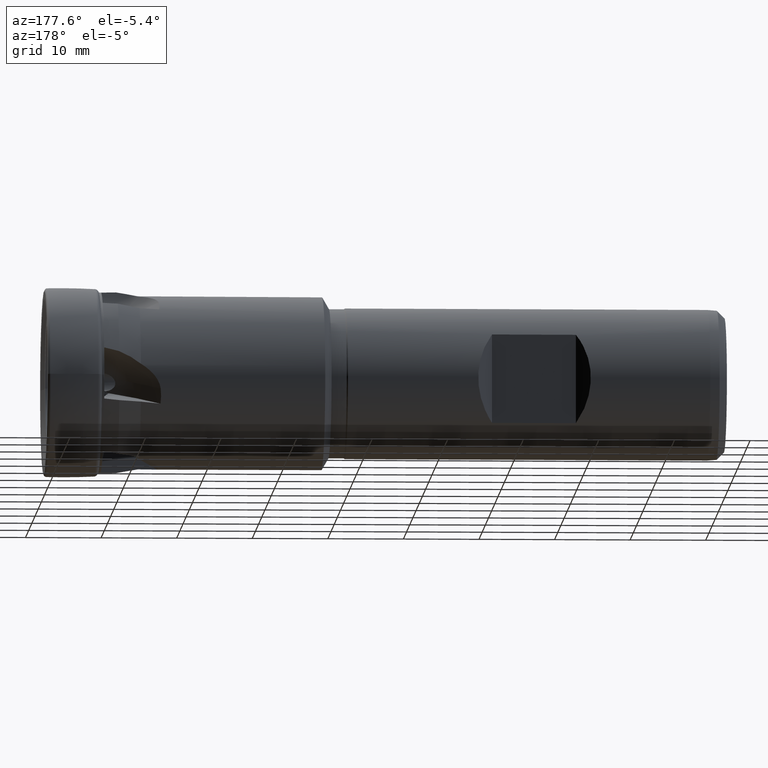
[diagram: clean part render]
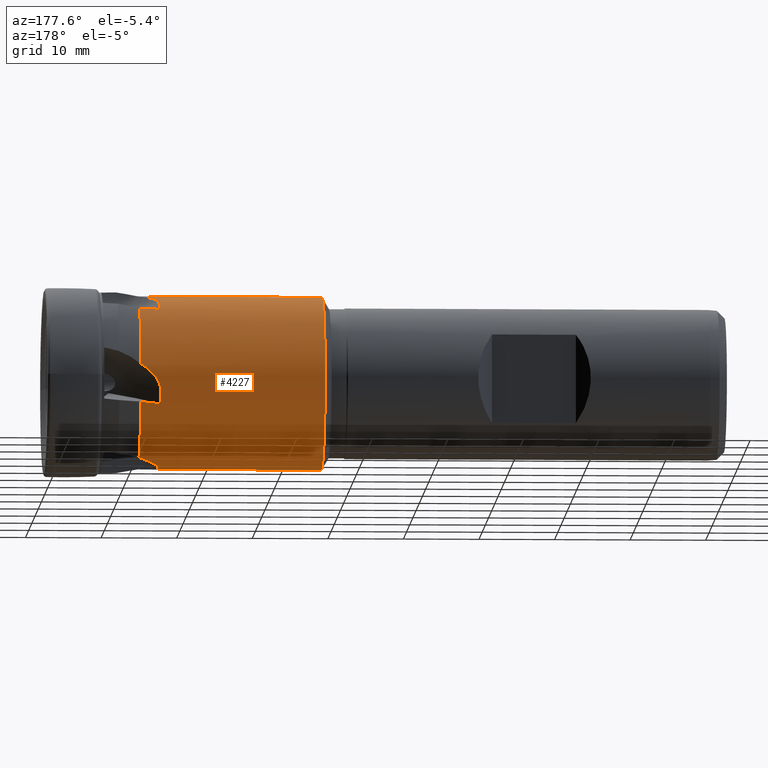
[diagram: same view with one face highlighted and labeled with its STEP entity id]
A machine part, auxiliary view. The second image highlights one B-rep face of the part: STEP entity #4227.
In plain terms, the highlighted cylindrical surface (partial cylindrical patch) has radius 11.47 mm, axis along (1, -0, -0).
Its self-contained STEP definition (entity closure, byte-faithful):
#42 = B_SPLINE_CURVE_WITH_KNOTS ( 'NONE', 3,
 ( #3622, #3608, #3624, #3625 ),
 .UNSPECIFIED., .F., .F.,
 ( 4, 4 ),
 ( 0.0002233341233042811500, 0.002014763653089135900 ),
 .UNSPECIFIED. ) ;
#57 = B_SPLINE_CURVE_WITH_KNOTS ( 'NONE', 3,
 ( #3612, #3607, #3606, #3613, #3614, #3615, #3616, #3617, #3618, #3619, #3620, #3621 ),
 .UNSPECIFIED., .F., .F.,
 ( 4, 2, 2, 2, 2, 4 ),
 ( 0.0009260420492900439100, 0.001466949794871057800, 0.002007857540452071600, 0.003089673031614100000, 0.004171488522776128000, 0.005253304013938156500 ),
 .UNSPECIFIED. ) ;
#110 = B_SPLINE_CURVE_WITH_KNOTS ( 'NONE', 3,
 ( #3265, #3250, #3266, #3267 ),
 .UNSPECIFIED., .F., .F.,
 ( 4, 4 ),
 ( 1.504141304261615500E-016, 0.002014763653088705700 ),
 .UNSPECIFIED. ) ;
#113 = B_SPLINE_CURVE_WITH_KNOTS ( 'NONE', 3,
 ( #3254, #3249, #3248, #3255, #3256, #3257, #3258, #3259, #3260, #3261, #3262, #3263 ),
 .UNSPECIFIED., .F., .F.,
 ( 4, 2, 2, 2, 2, 4 ),
 ( 0.004748511316785335300, 0.005289118529937748800, 0.005829725743090161500, 0.006910940169394991100, 0.007992154595699818900, 0.009073369022004647600 ),
 .UNSPECIFIED. ) ;
#114 = B_SPLINE_CURVE_WITH_KNOTS ( 'NONE', 3,
 ( #3354, #3349, #3348, #3355, #3356, #3357, #3358, #3359, #3360, #3361, #3362, #3363 ),
 .UNSPECIFIED., .F., .F.,
 ( 4, 2, 2, 2, 2, 4 ),
 ( 0.004748511316785443800, 0.005289118529937852100, 0.005829725743090260300, 0.006910940169395078700, 0.007992154595699897000, 0.009073369022004715300 ),
 .UNSPECIFIED. ) ;
#115 = B_SPLINE_CURVE_WITH_KNOTS ( 'NONE', 3,
 ( #3364, #3350, #3365, #3366 ),
 .UNSPECIFIED., .F., .F.,
 ( 4, 4 ),
 ( 4.072725187628632600E-016, 0.002014763653089292400 ),
 .UNSPECIFIED. ) ;
#439 = CARTESIAN_POINT ( 'NONE',  ( -11.87817552345608800, 10.92355657672099800, -3.498115451950587500 ) ) ;
#444 = CARTESIAN_POINT ( 'NONE',  ( -12.74259548863415100, 10.89584765442856300, -3.584642035906715000 ) ) ;
#445 = CARTESIAN_POINT ( 'NONE',  ( -13.60699801059268700, 10.86711265769592300, -3.670833300362579700 ) ) ;
#446 = CARTESIAN_POINT ( 'NONE',  ( -14.47126106568777700, 10.83735564290759400, -3.756677078102218300 ) ) ;
#600 = EDGE_CURVE ( 'NONE', #5144, #5130, #4304, .T. ) ;
#602 = EDGE_CURVE ( 'NONE', #5130, #5157, #3240, .T. ) ;
#603 = EDGE_CURVE ( 'NONE', #5140, #5157, #4308, .T. ) ;
#604 = EDGE_CURVE ( 'NONE', #4691, #5140, #113, .T. ) ;
#605 = EDGE_CURVE ( 'NONE', #5112, #4691, #110, .T. ) ;
#606 = EDGE_CURVE ( 'NONE', #5103, #5112, #2257, .T. ) ;
#607 = EDGE_CURVE ( 'NONE', #5101, #5103, #4307, .T. ) ;
#608 = EDGE_CURVE ( 'NONE', #5109, #5101, #114, .T. ) ;
#609 = EDGE_CURVE ( 'NONE', #5156, #5109, #115, .T. ) ;
#808 = AXIS2_PLACEMENT_3D ( 'NONE', #1395, #1392, #1397 ) ;
#1392 = DIRECTION ( 'NONE',  ( 1.000000000000000000, -0.0000000000000000000, -0.0000000000000000000 ) ) ;
#1393 = CYLINDRICAL_SURFACE ( 'NONE', #808, 11.47000000000000100 ) ;
#1394 = FACE_OUTER_BOUND ( 'NONE', #5074, .T. ) ;
#1395 = CARTESIAN_POINT ( 'NONE',  ( 0.0000000000000000000, 0.0000000000000000000, 0.0000000000000000000 ) ) ;
#1397 = DIRECTION ( 'NONE',  ( 0.0000000000000000000, 0.0000000000000000000, -1.000000000000000000 ) ) ;
#1797 = CARTESIAN_POINT ( 'NONE',  ( -14.48066843762638500, 5.214631095827272100, 10.21609135307788700 ) ) ;
#1888 = CARTESIAN_POINT ( 'NONE',  ( -11.87817552345578800, 11.37413133048542100, 1.479877183035790200 ) ) ;
#1890 = CARTESIAN_POINT ( 'NONE',  ( -11.87817552345608800, 6.702470116553361600, 9.307942540470969900 ) ) ;
#1895 = CARTESIAN_POINT ( 'NONE',  ( -14.48066843762615500, 11.32748988041783600, -1.802463039573803300 ) ) ;
#1898 = CARTESIAN_POINT ( 'NONE',  ( -14.47126106568777900, 6.921739282489413700, 9.146060644082927700 ) ) ;
#1906 = CARTESIAN_POINT ( 'NONE',  ( -14.48066843762578400, 1.786142657491685000, -11.33007477499954300 ) ) ;
#1909 = CARTESIAN_POINT ( 'NONE',  ( -14.49795270132863200, -6.130933970260212600E-015, -11.47000000000000100 ) ) ;
#1914 = CARTESIAN_POINT ( 'NONE',  ( -36.24714991585852200, 1.404669878622014200E-015, 11.47000000000000100 ) ) ;
#1924 = CARTESIAN_POINT ( 'NONE',  ( -11.87817552345579000, 2.107353039129789000, 11.27474891820081600 ) ) ;
#1928 = CARTESIAN_POINT ( 'NONE',  ( -36.24714991585852200, 0.0000000000000000000, -11.47000000000000100 ) ) ;
#1931 = CARTESIAN_POINT ( 'NONE',  ( -11.87817552345608800, 10.92355657672099800, -3.498115451950587500 ) ) ;
#1936 = CARTESIAN_POINT ( 'NONE',  ( -11.87817552345572900, 4.922246715615383300, -10.36013451990916900 ) ) ;
#1940 = CARTESIAN_POINT ( 'NONE',  ( -14.47126106568777700, 10.83735564290759400, -3.756677078102218300 ) ) ;
#1941 = CARTESIAN_POINT ( 'NONE',  ( -11.87817552345608800, 1.404669878622014200E-015, 11.47000000000000100 ) ) ;
#2257 =( BOUNDED_CURVE ( )  B_SPLINE_CURVE ( 3, ( #3264, #3268, #3269, #4187 ),
 .UNSPECIFIED., .F., .T. ) 
 B_SPLINE_CURVE_WITH_KNOTS ( ( 4, 4 ),
 ( 1.566554018874448000, 1.590316759759671900 ),
 .UNSPECIFIED. ) 
 CURVE ( )  GEOMETRIC_REPRESENTATION_ITEM ( )  RATIONAL_B_SPLINE_CURVE ( ( 1.000000000000000000, 0.9999529448990245300, 0.9999529448990245300, 1.000000000000000000 ) ) 
 REPRESENTATION_ITEM ( '' )  );
#2262 =( BOUNDED_CURVE ( )  B_SPLINE_CURVE ( 3, ( #439, #444, #445, #446 ),
 .UNSPECIFIED., .F., .T. ) 
 B_SPLINE_CURVE_WITH_KNOTS ( ( 4, 4 ),
 ( 1.566554018874447100, 1.590316759759671900 ),
 .UNSPECIFIED. ) 
 CURVE ( )  GEOMETRIC_REPRESENTATION_ITEM ( )  RATIONAL_B_SPLINE_CURVE ( ( 1.000000000000000000, 0.9999529448990245300, 0.9999529448990245300, 1.000000000000000000 ) ) 
 REPRESENTATION_ITEM ( '' )  );
#2435 = ORIENTED_EDGE ( 'NONE', *, *, #602, .T. ) ;
#2436 = ORIENTED_EDGE ( 'NONE', *, *, #600, .T. ) ;
#2437 = ORIENTED_EDGE ( 'NONE', *, *, #605, .F. ) ;
#2438 = ORIENTED_EDGE ( 'NONE', *, *, #604, .F. ) ;
#2439 = ORIENTED_EDGE ( 'NONE', *, *, #606, .F. ) ;
#2440 = ORIENTED_EDGE ( 'NONE', *, *, #603, .F. ) ;
#3240 = LINE ( 'NONE', #3246, #4305 ) ;
#3242 = CARTESIAN_POINT ( 'NONE',  ( -36.24714991585852200, 0.0000000000000000000, 0.0000000000000000000 ) ) ;
#3243 = DIRECTION ( 'NONE',  ( 1.000000000000000000, -0.0000000000000000000, -0.0000000000000000000 ) ) ;
#3244 = DIRECTION ( 'NONE',  ( 0.0000000000000000000, 0.0000000000000000000, -1.000000000000000000 ) ) ;
#3246 = CARTESIAN_POINT ( 'NONE',  ( 0.0000000000000000000, 1.404669878622014200E-015, 11.47000000000000100 ) ) ;
#3247 = DIRECTION ( 'NONE',  ( 1.000000000000000000, -0.0000000000000000000, -0.0000000000000000000 ) ) ;
#3248 = CARTESIAN_POINT ( 'NONE',  ( -14.41662174385246000, 4.894114241457376800, 10.37487877067066400 ) ) ;
#3249 = CARTESIAN_POINT ( 'NONE',  ( -14.45758047864786800, 5.053206882596725800, 10.29848761333422000 ) ) ;
#3250 = CARTESIAN_POINT ( 'NONE',  ( -14.56108882989138000, 6.384474477056882000, 9.552662683318191100 ) ) ;
#3251 = CARTESIAN_POINT ( 'NONE',  ( -11.87817552345608800, 0.0000000000000000000, 0.0000000000000000000 ) ) ;
#3252 = DIRECTION ( 'NONE',  ( 1.000000000000000000, -0.0000000000000000000, -0.0000000000000000000 ) ) ;
#3253 = DIRECTION ( 'NONE',  ( 0.0000000000000000000, 0.0000000000000000000, -1.000000000000000000 ) ) ;
#3254 = CARTESIAN_POINT ( 'NONE',  ( -14.48066843762638500, 5.214631095827272100, 10.21609135307788700 ) ) ;
#3255 = CARTESIAN_POINT ( 'NONE',  ( -14.30449910439881800, 4.580935840793052300, 10.51691449699417700 ) ) ;
#3256 = CARTESIAN_POINT ( 'NONE',  ( -14.23251510717199200, 4.425523308846312200, 10.58307521336323600 ) ) ;
#3257 = CARTESIAN_POINT ( 'NONE',  ( -13.98361258324426400, 3.978070167732199900, 10.76286243784481800 ) ) ;
#3258 = CARTESIAN_POINT ( 'NONE',  ( -13.77443299679718600, 3.701587610756348100, 10.85974016239589300 ) ) ;
#3259 = CARTESIAN_POINT ( 'NONE',  ( -13.29600055055346000, 3.179760593582490200, 11.02383008769453100 ) ) ;
#3260 = CARTESIAN_POINT ( 'NONE',  ( -13.03345597677306400, 2.942090394026807500, 11.08857800139521500 ) ) ;
#3261 = CARTESIAN_POINT ( 'NONE',  ( -12.47782469049483300, 2.500931164694927900, 11.19632981334098800 ) ) ;
#3262 = CARTESIAN_POINT ( 'NONE',  ( -12.18418711645982600, 2.297348409636577000, 11.23923705675180400 ) ) ;
#3263 = CARTESIAN_POINT ( 'NONE',  ( -11.87817552345579000, 2.107353039129789000, 11.27474891820081600 ) ) ;
#3264 = CARTESIAN_POINT ( 'NONE',  ( -11.87817552345608800, 6.702470116553361600, 9.307942540470969900 ) ) ;
#3265 = CARTESIAN_POINT ( 'NONE',  ( -14.47126106568777900, 6.921739282489413700, 9.146060644082927700 ) ) ;
#3266 = CARTESIAN_POINT ( 'NONE',  ( -14.56660671982056200, 5.815486268974162900, 9.909394989302986900 ) ) ;
#3267 = CARTESIAN_POINT ( 'NONE',  ( -14.48066843762638500, 5.214631095827272100, 10.21609135307788700 ) ) ;
#3268 = CARTESIAN_POINT ( 'NONE',  ( -12.74259548863420800, 6.776199260173421600, 9.254851604457572400 ) ) ;
#3269 = CARTESIAN_POINT ( 'NONE',  ( -13.60699801059271200, 6.849292421558196500, 9.200888433085754800 ) ) ;
#3297 = EDGE_CURVE ( 'NONE', #5152, #5147, #4336, .T. ) ;
#3298 = EDGE_CURVE ( 'NONE', #5122, #5152, #57, .T. ) ;
#3299 = EDGE_CURVE ( 'NONE', #5125, #5122, #42, .T. ) ;
#3300 = EDGE_CURVE ( 'NONE', #5144, #5125, #3623, .T. ) ;
#3348 = CARTESIAN_POINT ( 'NONE',  ( -14.41662174385244200, 11.37946053364136900, -1.448565386113851900 ) ) ;
#3349 = CARTESIAN_POINT ( 'NONE',  ( -14.45758047864785000, 11.35597055546127400, -1.623477645000964000 ) ) ;
#3350 = CARTESIAN_POINT ( 'NONE',  ( -14.56108882989518500, 11.05803320650549500, -3.120060943849219700 ) ) ;
#3351 = CARTESIAN_POINT ( 'NONE',  ( -11.87817552345608800, 0.0000000000000000000, 0.0000000000000000000 ) ) ;
#3352 = DIRECTION ( 'NONE',  ( 1.000000000000000000, -0.0000000000000000000, -0.0000000000000000000 ) ) ;
#3353 = DIRECTION ( 'NONE',  ( 0.0000000000000000000, 0.0000000000000000000, -1.000000000000000000 ) ) ;
#3354 = CARTESIAN_POINT ( 'NONE',  ( -14.48066843762615500, 11.32748988041783600, -1.802463039573803300 ) ) ;
#3355 = CARTESIAN_POINT ( 'NONE',  ( -14.30449910439879900, 11.41776708863162200, -1.106823574156800900 ) ) ;
#3356 = CARTESIAN_POINT ( 'NONE',  ( -14.23251510717197000, 11.43266455554678600, -0.9385726872168637100 ) ) ;
#3357 = CARTESIAN_POINT ( 'NONE',  ( -13.98361258324424700, 11.46538174214590600, -0.4574621538872475900 ) ) ;
#3358 = CARTESIAN_POINT ( 'NONE',  ( -13.77443299679717000, 11.47208012461027600, -0.1645747531707677500 ) ) ;
#3359 = CARTESIAN_POINT ( 'NONE',  ( -13.29600055055344600, 11.46688550089321800, 0.3824188074142827500 ) ) ;
#3360 = CARTESIAN_POINT ( 'NONE',  ( -13.03345597677304800, 11.45502029541557400, 0.6284648051147163600 ) ) ;
#3361 = CARTESIAN_POINT ( 'NONE',  ( -12.47782469049482400, 11.42117265922031400, 1.081329305960481800 ) ) ;
#3362 = CARTESIAN_POINT ( 'NONE',  ( -12.18418711645981700, 11.39906934158772800, 1.288207079159765700 ) ) ;
#3363 = CARTESIAN_POINT ( 'NONE',  ( -11.87817552345578800, 11.37413133048542100, 1.479877183035790200 ) ) ;
#3364 = CARTESIAN_POINT ( 'NONE',  ( -14.47126106568777700, 10.83735564290759400, -3.756677078102218300 ) ) ;
#3365 = CARTESIAN_POINT ( 'NONE',  ( -14.56660671982053800, 11.22147876478634000, -2.468684655864182600 ) ) ;
#3366 = CARTESIAN_POINT ( 'NONE',  ( -14.48066843762615500, 11.32748988041783600, -1.802463039573803300 ) ) ;
#3606 = CARTESIAN_POINT ( 'NONE',  ( -14.41678856827985200, 2.138200019548374800, -11.27025427944396400 ) ) ;
#3607 = CARTESIAN_POINT ( 'NONE',  ( -14.45761558735595500, 1.964896659646579300, -11.30189489492082300 ) ) ;
#3608 = CARTESIAN_POINT ( 'NONE',  ( -14.56083192216340500, 0.5982558236198194400, -11.47000000000000100 ) ) ;
#3609 = CARTESIAN_POINT ( 'NONE',  ( -11.87817552345608800, 0.0000000000000000000, 0.0000000000000000000 ) ) ;
#3610 = DIRECTION ( 'NONE',  ( 1.000000000000000000, -0.0000000000000000000, -0.0000000000000000000 ) ) ;
#3611 = DIRECTION ( 'NONE',  ( 0.0000000000000000000, 0.0000000000000000000, -1.000000000000000000 ) ) ;
#3612 = CARTESIAN_POINT ( 'NONE',  ( -14.48066843762578400, 1.786142657491685000, -11.33007477499954300 ) ) ;
#3613 = CARTESIAN_POINT ( 'NONE',  ( -14.30458972237876100, 2.475437798113405000, -11.20101506804598500 ) ) ;
#3614 = CARTESIAN_POINT ( 'NONE',  ( -14.23250111613343600, 2.640266934147573500, -11.16313990456071900 ) ) ;
#3615 = CARTESIAN_POINT ( 'NONE',  ( -13.98378727928122300, 3.107619834445885000, -11.04566915193254100 ) ) ;
#3616 = CARTESIAN_POINT ( 'NONE',  ( -13.77363474485915300, 3.389537268150708100, -10.96114414511826000 ) ) ;
#3617 = CARTESIAN_POINT ( 'NONE',  ( -13.29518843446423700, 3.907920156984622900, -10.78720556533879300 ) ) ;
#3618 = CARTESIAN_POINT ( 'NONE',  ( -13.03319983931218800, 4.137704235446695300, -10.70008436233624500 ) ) ;
#3619 = CARTESIAN_POINT ( 'NONE',  ( -12.47784989995181500, 4.557713638868679400, -10.52804103749679300 ) ) ;
#3620 = CARTESIAN_POINT ( 'NONE',  ( -12.18425244959554900, 4.747626610340780900, -10.44309900632771700 ) ) ;
#3621 = CARTESIAN_POINT ( 'NONE',  ( -11.87817552345572900, 4.922246715615383300, -10.36013451990916900 ) ) ;
#3622 = CARTESIAN_POINT ( 'NONE',  ( -14.49795270132863200, -6.130933970260212600E-015, -11.47000000000000100 ) ) ;
#3623 = LINE ( 'NONE', #3626, #4343 ) ;
#3624 = CARTESIAN_POINT ( 'NONE',  ( -14.55708056478857900, 1.193635727404346100, -11.42348121085355700 ) ) ;
#3625 = CARTESIAN_POINT ( 'NONE',  ( -14.48066843762578400, 1.786142657491685000, -11.33007477499954300 ) ) ;
#3626 = CARTESIAN_POINT ( 'NONE',  ( 0.0000000000000000000, 0.0000000000000000000, -11.47000000000000100 ) ) ;
#3627 = DIRECTION ( 'NONE',  ( 1.000000000000000000, -0.0000000000000000000, -0.0000000000000000000 ) ) ;
#4043 = ORIENTED_EDGE ( 'NONE', *, *, #609, .F. ) ;
#4045 = ORIENTED_EDGE ( 'NONE', *, *, #3298, .F. ) ;
#4050 = ORIENTED_EDGE ( 'NONE', *, *, #4193, .F. ) ;
#4058 = ORIENTED_EDGE ( 'NONE', *, *, #3297, .F. ) ;
#4063 = ORIENTED_EDGE ( 'NONE', *, *, #608, .F. ) ;
#4078 = ORIENTED_EDGE ( 'NONE', *, *, #607, .F. ) ;
#4187 = CARTESIAN_POINT ( 'NONE',  ( -14.47126106568777900, 6.921739282489413700, 9.146060644082927700 ) ) ;
#4193 = EDGE_CURVE ( 'NONE', #5147, #5156, #2262, .T. ) ;
#4227 = ADVANCED_FACE ( 'NONE', ( #1394 ), #1393, .T. ) ;
#4304 = CIRCLE ( 'NONE', #4306, 11.47000000000000100 ) ;
#4305 = VECTOR ( 'NONE', #3247, 1000.000000000000000 ) ;
#4306 = AXIS2_PLACEMENT_3D ( 'NONE', #3242, #3243, #3244 ) ;
#4307 = CIRCLE ( 'NONE', #4309, 11.47000000000000100 ) ;
#4308 = CIRCLE ( 'NONE', #4310, 11.47000000000000100 ) ;
#4309 = AXIS2_PLACEMENT_3D ( 'NONE', #3351, #3352, #3353 ) ;
#4310 = AXIS2_PLACEMENT_3D ( 'NONE', #3251, #3252, #3253 ) ;
#4336 = CIRCLE ( 'NONE', #4341, 11.47000000000000100 ) ;
#4341 = AXIS2_PLACEMENT_3D ( 'NONE', #3609, #3610, #3611 ) ;
#4343 = VECTOR ( 'NONE', #3627, 1000.000000000000000 ) ;
#4691 = VERTEX_POINT ( 'NONE', #1797 ) ;
#5074 = EDGE_LOOP ( 'NONE', ( #2436, #2435, #2440, #2438, #2437, #2439, #4078, #4063, #4043, #4050, #4058, #4045, #5241, #5243 ) ) ;
#5101 = VERTEX_POINT ( 'NONE', #1888 ) ;
#5103 = VERTEX_POINT ( 'NONE', #1890 ) ;
#5109 = VERTEX_POINT ( 'NONE', #1895 ) ;
#5112 = VERTEX_POINT ( 'NONE', #1898 ) ;
#5122 = VERTEX_POINT ( 'NONE', #1906 ) ;
#5125 = VERTEX_POINT ( 'NONE', #1909 ) ;
#5130 = VERTEX_POINT ( 'NONE', #1914 ) ;
#5140 = VERTEX_POINT ( 'NONE', #1924 ) ;
#5144 = VERTEX_POINT ( 'NONE', #1928 ) ;
#5147 = VERTEX_POINT ( 'NONE', #1931 ) ;
#5152 = VERTEX_POINT ( 'NONE', #1936 ) ;
#5156 = VERTEX_POINT ( 'NONE', #1940 ) ;
#5157 = VERTEX_POINT ( 'NONE', #1941 ) ;
#5241 = ORIENTED_EDGE ( 'NONE', *, *, #3299, .F. ) ;
#5243 = ORIENTED_EDGE ( 'NONE', *, *, #3300, .F. ) ;